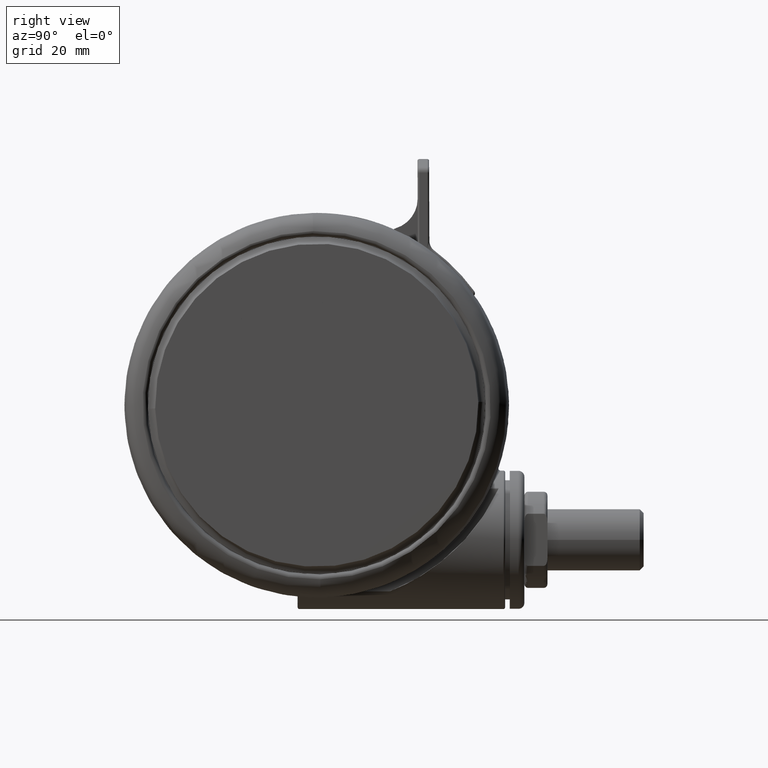
[diagram: clean part render]
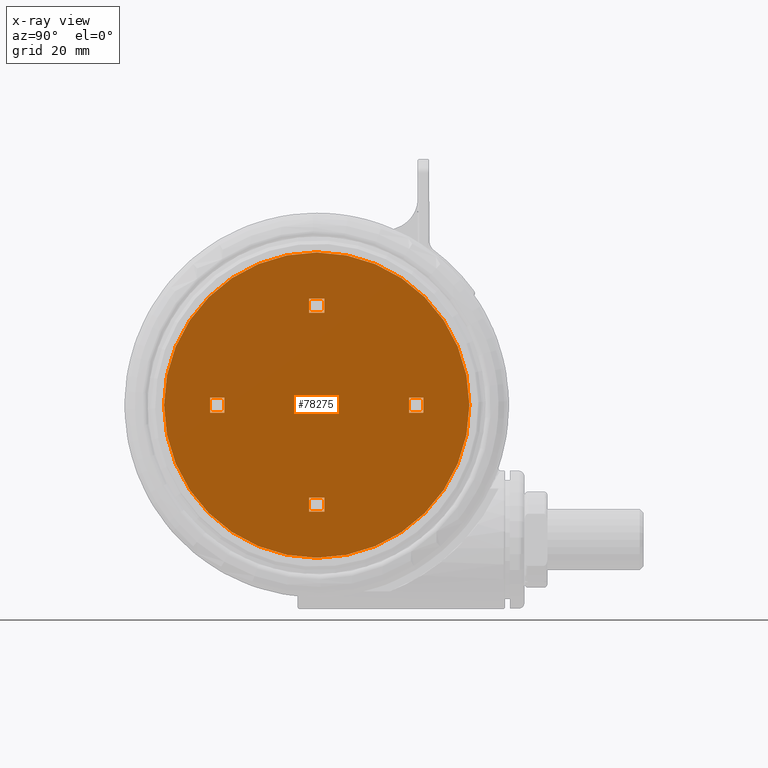
[diagram: x-ray — body ghosted, one internal face saturated and labeled with its STEP entity id]
A machine part, right view, then the same camera in x-ray: the body is ghosted and one INTERNAL B-rep face — a face not visible from any outside direction — is saturated and labeled: STEP entity #78275.
In plain terms, the highlighted planar face has unit normal (-1, 0, 0).
Its self-contained STEP definition (entity closure, byte-faithful):
#1521 = VECTOR ( 'NONE', #62581, 1000.000000000000100 ) ;
#2398 = VECTOR ( 'NONE', #39387, 1000.000000000000100 ) ;
#2558 = FACE_BOUND ( 'NONE', #56497, .T. ) ;
#2918 = VECTOR ( 'NONE', #51420, 1000.000000000000100 ) ;
#3733 = DIRECTION ( 'NONE',  ( 0.9997947190500677800, -0.02026128721468460300, 1.807003620809174600E-016 ) ) ;
#6687 = DIRECTION ( 'NONE',  ( 0.0000000000000000000, -0.0000000000000000000, 1.000000000000000000 ) ) ;
#6849 = VERTEX_POINT ( 'NONE', #58243 ) ;
#7875 = CARTESIAN_POINT ( 'NONE',  ( 1.513318594002830000, -24.03559098985550000, -63.39999999999985600 ) ) ;
#8226 = VERTEX_POINT ( 'NONE', #63891 ) ;
#8660 = CARTESIAN_POINT ( 'NONE',  ( 1.513318594002830000, -24.03559098985550000, -63.39999999999985600 ) ) ;
#9698 = CARTESIAN_POINT ( 'NONE',  ( 2.485860380308025700, 23.95455552454775400, -63.39999999999985600 ) ) ;
#10228 = LINE ( 'NONE', #17997, #75385 ) ;
#10456 = LINE ( 'NONE', #12751, #25284 ) ;
#10461 = CARTESIAN_POINT ( 'NONE',  ( 1.438351831308456700, -27.73483145034074900, -63.39999999999985600 ) ) ;
#10735 = CARTESIAN_POINT ( 'NONE',  ( -27.69431366863150500, 0.5612424976222579700, -63.39999999999985600 ) ) ;
#10769 = ORIENTED_EDGE ( 'NONE', *, *, #50937, .T. ) ;
#11035 = VERTEX_POINT ( 'NONE', #40261 ) ;
#11301 = ORIENTED_EDGE ( 'NONE', *, *, #36416, .T. ) ;
#11401 = CARTESIAN_POINT ( 'NONE',  ( -24.03559578257562600, -1.513313703172211000, -63.39999999999985600 ) ) ;
#11562 = ORIENTED_EDGE ( 'NONE', *, *, #19296, .T. ) ;
#11796 = VERTEX_POINT ( 'NONE', #68750 ) ;
#11908 = EDGE_CURVE ( 'NONE', #31248, #68035, #10456, .T. ) ;
#12751 = CARTESIAN_POINT ( 'NONE',  ( -1.999589389044761100, 0.04052741620488425200, -63.39999999999985600 ) ) ;
#12926 = VERTEX_POINT ( 'NONE', #79287 ) ;
#13249 = EDGE_CURVE ( 'NONE', #56486, #31648, #64544, .T. ) ;
#13864 = ORIENTED_EDGE ( 'NONE', *, *, #47725, .T. ) ;
#14388 = LINE ( 'NONE', #39018, #45999 ) ;
#14612 = DIRECTION ( 'NONE',  ( -0.9997947190500675600, 0.02026128721469507000, 0.0000000000000000000 ) ) ;
#15462 = ORIENTED_EDGE ( 'NONE', *, *, #46281, .T. ) ;
#16089 = DIRECTION ( 'NONE',  ( -0.02026128721468809000, -0.9997947190500676700, 1.807003620809174600E-016 ) ) ;
#16144 = CARTESIAN_POINT ( 'NONE',  ( -27.65379109420213800, 2.560831935722394100, -63.39999999999985600 ) ) ;
#16279 = ORIENTED_EDGE ( 'NONE', *, *, #32744, .T. ) ;
#17356 = CARTESIAN_POINT ( 'NONE',  ( -1.513318495892246100, 24.03560067340649200, -63.39999999999985600 ) ) ;
#17997 = CARTESIAN_POINT ( 'NONE',  ( 0.04052262348474387800, 1.999594279875630300, -63.39999999999985600 ) ) ;
#18466 = CARTESIAN_POINT ( 'NONE',  ( -24.03559578257562600, -1.513313703172211000, -63.39999999999985600 ) ) ;
#19046 = ORIENTED_EDGE ( 'NONE', *, *, #37059, .T. ) ;
#19240 = VECTOR ( 'NONE', #14612, 1000.000000000000100 ) ;
#19296 = EDGE_CURVE ( 'NONE', #11796, #26827, #73956, .T. ) ;
#19302 = CARTESIAN_POINT ( 'NONE',  ( 27.65379119231288400, -2.560822252171405000, -63.39999999999985600 ) ) ;
#21565 = VERTEX_POINT ( 'NONE', #9698 ) ;
#22102 = EDGE_LOOP ( 'NONE', ( #54450, #28944, #15462, #71236 ) ) ;
#22268 = DIRECTION ( 'NONE',  ( 0.9997947190500676700, -0.02026128721468809000, 0.0000000000000000000 ) ) ;
#22271 = VECTOR ( 'NONE', #67566, 1000.000000000000100 ) ;
#22290 = CARTESIAN_POINT ( 'NONE',  ( -2.560827044891814900, -27.65378630148200800, -63.39999999999985600 ) ) ;
#22362 = ORIENTED_EDGE ( 'NONE', *, *, #76958, .T. ) ;
#22415 = CARTESIAN_POINT ( 'NONE',  ( -1.999589389044761600, 0.04052741620487093600, -63.39999999999985600 ) ) ;
#23387 = EDGE_LOOP ( 'NONE', ( #11562, #63925, #11301, #72530 ) ) ;
#23736 = DIRECTION ( 'NONE',  ( 0.9997947190500677800, -0.02026128721468460300, 1.807003620809174600E-016 ) ) ;
#25284 = VECTOR ( 'NONE', #57193, 1000.000000000000100 ) ;
#26827 = VERTEX_POINT ( 'NONE', #19302 ) ;
#28518 = CARTESIAN_POINT ( 'NONE',  ( 27.69431376674225500, -0.5612328140712691300, -63.39999999999985600 ) ) ;
#28944 = ORIENTED_EDGE ( 'NONE', *, *, #48851, .T. ) ;
#29014 = CARTESIAN_POINT ( 'NONE',  ( -40.49168607247237600, 0.8205869739702208500, -63.39999999999985600 ) ) ;
#29181 = CARTESIAN_POINT ( 'NONE',  ( -0.04052252537399518600, -1.999584596324641500, -63.39999999999985600 ) ) ;
#29380 = VERTEX_POINT ( 'NONE', #16144 ) ;
#29959 = EDGE_CURVE ( 'NONE', #30277, #21565, #68664, .T. ) ;
#30277 = VERTEX_POINT ( 'NONE', #68198 ) ;
#30534 = DIRECTION ( 'NONE',  ( 0.0000000000000000000, -0.0000000000000000000, 1.000000000000000000 ) ) ;
#31248 = VERTEX_POINT ( 'NONE', #22290 ) ;
#31648 = VERTEX_POINT ( 'NONE', #8660 ) ;
#32729 = CARTESIAN_POINT ( 'NONE',  ( 1.999589487155510400, -0.04051773265388143600, -63.39999999999985600 ) ) ;
#32744 = EDGE_CURVE ( 'NONE', #35541, #30277, #45720, .T. ) ;
#33042 = EDGE_CURVE ( 'NONE', #6849, #64254, #42712, .T. ) ;
#34250 = FACE_BOUND ( 'NONE', #63829, .T. ) ;
#35394 = DIRECTION ( 'NONE',  ( -0.02026128721468460300, -0.9997947190500677800, 0.0000000000000000000 ) ) ;
#35541 = VERTEX_POINT ( 'NONE', #60931 ) ;
#36033 = LINE ( 'NONE', #52441, #19240 ) ;
#36066 = LINE ( 'NONE', #7875, #2398 ) ;
#36416 = EDGE_CURVE ( 'NONE', #8226, #48107, #14388, .T. ) ;
#36640 = EDGE_CURVE ( 'NONE', #35541, #40626, #63709, .T. ) ;
#37059 = EDGE_CURVE ( 'NONE', #56486, #31248, #36033, .T. ) ;
#37180 = LINE ( 'NONE', #18466, #1521 ) ;
#38974 = CARTESIAN_POINT ( 'NONE',  ( 1.999589487155510000, -0.04051773265389605600, -63.39999999999985600 ) ) ;
#39018 = CARTESIAN_POINT ( 'NONE',  ( 24.03559588068637600, 1.513323386723199900, -63.39999999999985600 ) ) ;
#39088 = DIRECTION ( 'NONE',  ( -0.02026128721468809000, -0.9997947190500676700, 1.807003620809174600E-016 ) ) ;
#39387 = DIRECTION ( 'NONE',  ( 0.9997947190500675600, -0.02026128721469507000, -0.0000000000000000000 ) ) ;
#39539 = LINE ( 'NONE', #29181, #73089 ) ;
#40261 = CARTESIAN_POINT ( 'NONE',  ( -23.95455063371688500, 2.485865173028060800, -63.39999999999985600 ) ) ;
#40626 = VERTEX_POINT ( 'NONE', #17356 ) ;
#41303 = CARTESIAN_POINT ( 'NONE',  ( -39.93044841662561600, 28.51490069165710400, -63.39999999999985600 ) ) ;
#42712 = CIRCLE ( 'NONE', #69193, 39.70000000000000300 ) ;
#44551 = CARTESIAN_POINT ( 'NONE',  ( 4.905537434596318700E-008, 4.841775494424105400E-006, -63.39999999999985600 ) ) ;
#45316 = DIRECTION ( 'NONE',  ( 0.02026128721469507000, 0.9997947190500675600, 1.807003620809174600E-016 ) ) ;
#45720 = LINE ( 'NONE', #41303, #79261 ) ;
#45999 = VECTOR ( 'NONE', #76777, 1000.000000000000100 ) ;
#46281 = EDGE_CURVE ( 'NONE', #11035, #60092, #37180, .T. ) ;
#46958 = VECTOR ( 'NONE', #16089, 1000.000000000000100 ) ;
#47294 = DIRECTION ( 'NONE',  ( -0.02026128721468460300, -0.9997947190500677800, 0.0000000000000000000 ) ) ;
#47725 = EDGE_CURVE ( 'NONE', #21565, #40626, #71069, .T. ) ;
#47763 = VECTOR ( 'NONE', #45316, 1000.000000000000100 ) ;
#48107 = VERTEX_POINT ( 'NONE', #71557 ) ;
#48851 = EDGE_CURVE ( 'NONE', #29380, #11035, #61031, .T. ) ;
#49014 = FACE_OUTER_BOUND ( 'NONE', #49783, .T. ) ;
#49230 = CIRCLE ( 'NONE', #80309, 39.70000000000000300 ) ;
#49783 = EDGE_LOOP ( 'NONE', ( #73647, #22362 ) ) ;
#50658 = EDGE_CURVE ( 'NONE', #12926, #29380, #70611, .T. ) ;
#50915 = DIRECTION ( 'NONE',  ( -0.02026128721468459900, -0.9997947190500677800, 0.0000000000000000000 ) ) ;
#50937 = EDGE_CURVE ( 'NONE', #68035, #31648, #36066, .T. ) ;
#51152 = CARTESIAN_POINT ( 'NONE',  ( -0.04052252537399453300, -1.999584596324641500, -63.39999999999985600 ) ) ;
#51420 = DIRECTION ( 'NONE',  ( -0.9997947190500677800, 0.02026128721468460300, 1.807003620809174600E-016 ) ) ;
#51961 = VECTOR ( 'NONE', #39088, 1000.000000000000100 ) ;
#52441 = CARTESIAN_POINT ( 'NONE',  ( -41.05292372831912900, -26.87372674371625800, -63.39999999999985600 ) ) ;
#52465 = EDGE_CURVE ( 'NONE', #11796, #48107, #10228, .T. ) ;
#54313 = CARTESIAN_POINT ( 'NONE',  ( -1.513318495892246100, 24.03560067340649200, -63.39999999999985600 ) ) ;
#54365 = VECTOR ( 'NONE', #54581, 1000.000000000000100 ) ;
#54450 = ORIENTED_EDGE ( 'NONE', *, *, #50658, .T. ) ;
#54451 = EDGE_CURVE ( 'NONE', #12926, #60092, #39539, .T. ) ;
#54581 = DIRECTION ( 'NONE',  ( -0.9997947190500676700, 0.02026128721468809000, -0.0000000000000000000 ) ) ;
#55215 = CARTESIAN_POINT ( 'NONE',  ( 0.04052262348474322500, 1.999594279875630300, -63.39999999999985600 ) ) ;
#55980 = ORIENTED_EDGE ( 'NONE', *, *, #36640, .F. ) ;
#56486 = VERTEX_POINT ( 'NONE', #10461 ) ;
#56497 = EDGE_LOOP ( 'NONE', ( #19046, #58958, #10769, #66840 ) ) ;
#57193 = DIRECTION ( 'NONE',  ( 0.02026128721469507000, 0.9997947190500675600, 1.807003620809174600E-016 ) ) ;
#58094 = ORIENTED_EDGE ( 'NONE', *, *, #29959, .T. ) ;
#58197 = AXIS2_PLACEMENT_3D ( 'NONE', #29014, #73140, #35394 ) ;
#58243 = CARTESIAN_POINT ( 'NONE',  ( -0.8043730533676043400, -39.69184550451220200, -63.39999999999984200 ) ) ;
#58958 = ORIENTED_EDGE ( 'NONE', *, *, #11908, .T. ) ;
#60092 = VERTEX_POINT ( 'NONE', #11401 ) ;
#60931 = CARTESIAN_POINT ( 'NONE',  ( -1.438351733197903000, 27.73484113389174200, -63.39999999999985600 ) ) ;
#61031 = LINE ( 'NONE', #55215, #66975 ) ;
#62114 = DIRECTION ( 'NONE',  ( -0.9997947190500677800, 0.02026128721468460300, 1.807003620809174600E-016 ) ) ;
#62581 = DIRECTION ( 'NONE',  ( -0.02026128721468460300, -0.9997947190500677800, -0.0000000000000000000 ) ) ;
#62676 = EDGE_CURVE ( 'NONE', #26827, #8226, #70090, .T. ) ;
#63019 = CARTESIAN_POINT ( 'NONE',  ( 0.8043731514783482000, 39.69185518806318700, -63.39999999999984200 ) ) ;
#63079 = CARTESIAN_POINT ( 'NONE',  ( -2.485860282197441600, -23.95454584099676200, -63.39999999999985600 ) ) ;
#63709 = LINE ( 'NONE', #22415, #46958 ) ;
#63829 = EDGE_LOOP ( 'NONE', ( #16279, #58094, #13864, #55980 ) ) ;
#63891 = CARTESIAN_POINT ( 'NONE',  ( 23.95455073182763400, -2.485855489477072100, -63.39999999999985600 ) ) ;
#63925 = ORIENTED_EDGE ( 'NONE', *, *, #62676, .T. ) ;
#64254 = VERTEX_POINT ( 'NONE', #63019 ) ;
#64544 = LINE ( 'NONE', #38974, #47763 ) ;
#65799 = FACE_BOUND ( 'NONE', #22102, .T. ) ;
#66840 = ORIENTED_EDGE ( 'NONE', *, *, #13249, .F. ) ;
#66975 = VECTOR ( 'NONE', #23736, 1000.000000000000100 ) ;
#67566 = DIRECTION ( 'NONE',  ( 0.02026128721468460300, 0.9997947190500677800, 0.0000000000000000000 ) ) ;
#67768 = FACE_BOUND ( 'NONE', #23387, .T. ) ;
#68006 = VECTOR ( 'NONE', #47294, 1000.000000000000100 ) ;
#68035 = VERTEX_POINT ( 'NONE', #63079 ) ;
#68198 = CARTESIAN_POINT ( 'NONE',  ( 2.560827143002368800, 27.65379598503300300, -63.39999999999985600 ) ) ;
#68303 = CARTESIAN_POINT ( 'NONE',  ( 4.905537434596318700E-008, 4.841775494424105400E-006, -63.39999999999985600 ) ) ;
#68664 = LINE ( 'NONE', #32729, #51961 ) ;
#68750 = CARTESIAN_POINT ( 'NONE',  ( 27.73483634117162600, 1.438356624028866800, -63.39999999999985600 ) ) ;
#69193 = AXIS2_PLACEMENT_3D ( 'NONE', #44551, #6687, #50915 ) ;
#70090 = LINE ( 'NONE', #51152, #2918 ) ;
#70611 = LINE ( 'NONE', #10735, #22271 ) ;
#71069 = LINE ( 'NONE', #54313, #54365 ) ;
#71236 = ORIENTED_EDGE ( 'NONE', *, *, #54451, .F. ) ;
#71557 = CARTESIAN_POINT ( 'NONE',  ( 24.03559588068637600, 1.513323386723199900, -63.39999999999985600 ) ) ;
#72530 = ORIENTED_EDGE ( 'NONE', *, *, #52465, .F. ) ;
#73089 = VECTOR ( 'NONE', #3733, 1000.000000000000100 ) ;
#73140 = DIRECTION ( 'NONE',  ( -0.0000000000000000000, 0.0000000000000000000, -1.000000000000000000 ) ) ;
#73647 = ORIENTED_EDGE ( 'NONE', *, *, #33042, .T. ) ;
#73956 = LINE ( 'NONE', #28518, #68006 ) ;
#74675 = DIRECTION ( 'NONE',  ( -0.02026128721468459900, -0.9997947190500677800, 0.0000000000000000000 ) ) ;
#75385 = VECTOR ( 'NONE', #62114, 1000.000000000000100 ) ;
#76777 = DIRECTION ( 'NONE',  ( 0.02026128721468460300, 0.9997947190500677800, -0.0000000000000000000 ) ) ;
#76958 = EDGE_CURVE ( 'NONE', #64254, #6849, #49230, .T. ) ;
#78275 = ADVANCED_FACE ( 'NONE', ( #2558, #67768, #34250, #65799, #49014 ), #79214, .F. ) ;
#79214 = PLANE ( 'NONE',  #58197 ) ;
#79261 = VECTOR ( 'NONE', #22268, 1000.000000000000100 ) ;
#79287 = CARTESIAN_POINT ( 'NONE',  ( -27.73483624306087600, -1.438346940477877900, -63.39999999999985600 ) ) ;
#80309 = AXIS2_PLACEMENT_3D ( 'NONE', #68303, #30534, #74675 ) ;